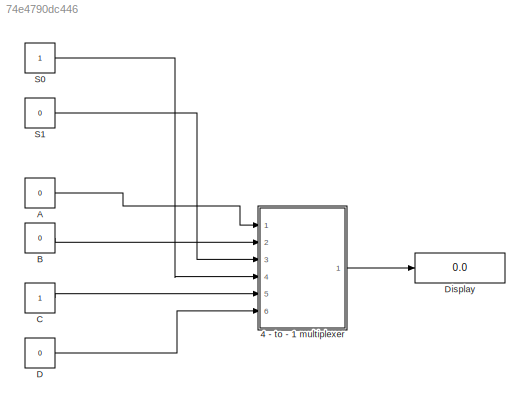
MODEL slx_74e4790dc446
KIND model
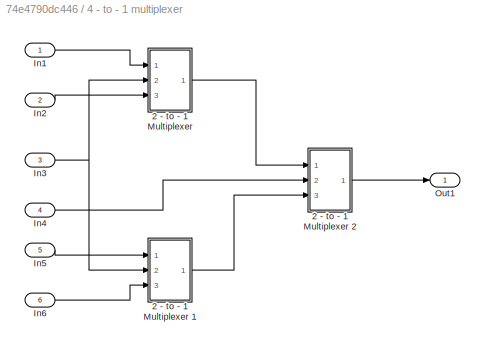
BLOCK [SubSystem] 4 - to  - 1 multiplexer
  Ports = [6, 1]
  RequestExecContextInheritance = off
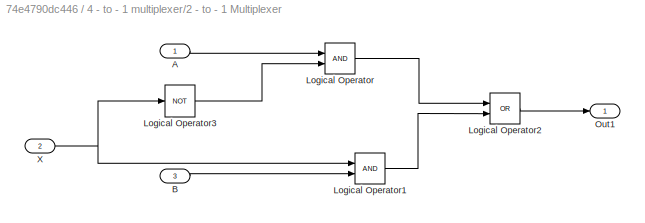
BLOCK [SubSystem] 4 - to  - 1 multiplexer/2 - to -  1 Multiplexer 
  Ports = [3, 1]
  RequestExecContextInheritance = off
BLOCK [Inport] 4 - to  - 1 multiplexer/2 - to -  1 Multiplexer /A
  IconDisplay = Port number
BLOCK [Inport] 4 - to  - 1 multiplexer/2 - to -  1 Multiplexer /B
  IconDisplay = Port number
  Port = 3
BLOCK [Logic] 4 - to  - 1 multiplexer/2 - to -  1 Multiplexer /Logical Operator
  AllPortsSameDT = off
  OutDataTypeStr = boolean
  Ports = [2, 1]
BLOCK [Logic] 4 - to  - 1 multiplexer/2 - to -  1 Multiplexer /Logical Operator1
  AllPortsSameDT = off
  OutDataTypeStr = boolean
  Ports = [2, 1]
BLOCK [Logic] 4 - to  - 1 multiplexer/2 - to -  1 Multiplexer /Logical Operator2
  AllPortsSameDT = off
  Operator = OR
  OutDataTypeStr = boolean
  Ports = [2, 1]
BLOCK [Logic] 4 - to  - 1 multiplexer/2 - to -  1 Multiplexer /Logical Operator3
  AllPortsSameDT = off
  Operator = NOT
  OutDataTypeStr = boolean
  Ports = [1, 1]
BLOCK [Outport] 4 - to  - 1 multiplexer/2 - to -  1 Multiplexer /Out1
  IconDisplay = Port number
BLOCK [Inport] 4 - to  - 1 multiplexer/2 - to -  1 Multiplexer /X
  IconDisplay = Port number
  Port = 2
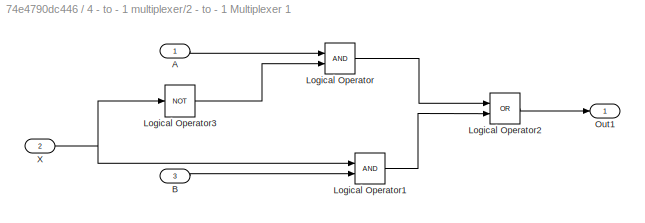
BLOCK [SubSystem] 4 - to  - 1 multiplexer/2 - to -  1 Multiplexer 1
  Ports = [3, 1]
  RequestExecContextInheritance = off
BLOCK [Inport] 4 - to  - 1 multiplexer/2 - to -  1 Multiplexer 1/A
  IconDisplay = Port number
BLOCK [Inport] 4 - to  - 1 multiplexer/2 - to -  1 Multiplexer 1/B
  IconDisplay = Port number
  Port = 3
BLOCK [Logic] 4 - to  - 1 multiplexer/2 - to -  1 Multiplexer 1/Logical Operator
  AllPortsSameDT = off
  OutDataTypeStr = boolean
  Ports = [2, 1]
BLOCK [Logic] 4 - to  - 1 multiplexer/2 - to -  1 Multiplexer 1/Logical Operator1
  AllPortsSameDT = off
  OutDataTypeStr = boolean
  Ports = [2, 1]
BLOCK [Logic] 4 - to  - 1 multiplexer/2 - to -  1 Multiplexer 1/Logical Operator2
  AllPortsSameDT = off
  Operator = OR
  OutDataTypeStr = boolean
  Ports = [2, 1]
BLOCK [Logic] 4 - to  - 1 multiplexer/2 - to -  1 Multiplexer 1/Logical Operator3
  AllPortsSameDT = off
  Operator = NOT
  OutDataTypeStr = boolean
  Ports = [1, 1]
BLOCK [Outport] 4 - to  - 1 multiplexer/2 - to -  1 Multiplexer 1/Out1
  IconDisplay = Port number
BLOCK [Inport] 4 - to  - 1 multiplexer/2 - to -  1 Multiplexer 1/X
  IconDisplay = Port number
  Port = 2
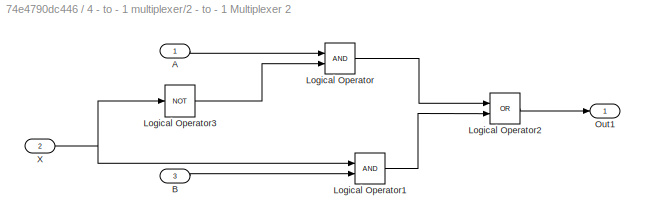
BLOCK [SubSystem] 4 - to  - 1 multiplexer/2 - to -  1 Multiplexer 2
  Ports = [3, 1]
  RequestExecContextInheritance = off
BLOCK [Inport] 4 - to  - 1 multiplexer/2 - to -  1 Multiplexer 2/A
  IconDisplay = Port number
BLOCK [Inport] 4 - to  - 1 multiplexer/2 - to -  1 Multiplexer 2/B
  IconDisplay = Port number
  Port = 3
BLOCK [Logic] 4 - to  - 1 multiplexer/2 - to -  1 Multiplexer 2/Logical Operator
  AllPortsSameDT = off
  OutDataTypeStr = boolean
  Ports = [2, 1]
BLOCK [Logic] 4 - to  - 1 multiplexer/2 - to -  1 Multiplexer 2/Logical Operator1
  AllPortsSameDT = off
  OutDataTypeStr = boolean
  Ports = [2, 1]
BLOCK [Logic] 4 - to  - 1 multiplexer/2 - to -  1 Multiplexer 2/Logical Operator2
  AllPortsSameDT = off
  Operator = OR
  OutDataTypeStr = boolean
  Ports = [2, 1]
BLOCK [Logic] 4 - to  - 1 multiplexer/2 - to -  1 Multiplexer 2/Logical Operator3
  AllPortsSameDT = off
  Operator = NOT
  OutDataTypeStr = boolean
  Ports = [1, 1]
BLOCK [Outport] 4 - to  - 1 multiplexer/2 - to -  1 Multiplexer 2/Out1
  IconDisplay = Port number
BLOCK [Inport] 4 - to  - 1 multiplexer/2 - to -  1 Multiplexer 2/X
  IconDisplay = Port number
  Port = 2
BLOCK [Inport] 4 - to  - 1 multiplexer/In1
  IconDisplay = Port number
BLOCK [Inport] 4 - to  - 1 multiplexer/In2
  IconDisplay = Port number
  Port = 2
BLOCK [Inport] 4 - to  - 1 multiplexer/In3
  IconDisplay = Port number
  Port = 3
BLOCK [Inport] 4 - to  - 1 multiplexer/In4
  IconDisplay = Port number
  Port = 4
BLOCK [Inport] 4 - to  - 1 multiplexer/In5
  IconDisplay = Port number
  Port = 5
BLOCK [Inport] 4 - to  - 1 multiplexer/In6
  IconDisplay = Port number
  Port = 6
BLOCK [Outport] 4 - to  - 1 multiplexer/Out1
  IconDisplay = Port number
BLOCK [Constant] A
  Value = 0
BLOCK [Constant] B
  Value = 0
BLOCK [Constant] C
BLOCK [Constant] D
  Value = 0
BLOCK [Display] Display
  Decimation = 1
  Ports = [1]
BLOCK [Constant] S0
BLOCK [Constant] S1
  Value = 0
LINE 4 - to  - 1 multiplexer/2 - to -  1 Multiplexer /A:1 -> 4 - to  - 1 multiplexer/2 - to -  1 Multiplexer /Logical Operator:1
LINE 4 - to  - 1 multiplexer/2 - to -  1 Multiplexer /B:1 -> 4 - to  - 1 multiplexer/2 - to -  1 Multiplexer /Logical Operator1:2
LINE 4 - to  - 1 multiplexer/2 - to -  1 Multiplexer /Logical Operator1:1 -> 4 - to  - 1 multiplexer/2 - to -  1 Multiplexer /Logical Operator2:2
LINE 4 - to  - 1 multiplexer/2 - to -  1 Multiplexer /Logical Operator2:1 -> 4 - to  - 1 multiplexer/2 - to -  1 Multiplexer /Out1:1
LINE 4 - to  - 1 multiplexer/2 - to -  1 Multiplexer /Logical Operator3:1 -> 4 - to  - 1 multiplexer/2 - to -  1 Multiplexer /Logical Operator:2
LINE 4 - to  - 1 multiplexer/2 - to -  1 Multiplexer /Logical Operator:1 -> 4 - to  - 1 multiplexer/2 - to -  1 Multiplexer /Logical Operator2:1
NET 4 - to  - 1 multiplexer/2 - to -  1 Multiplexer /X:1 -> 4 - to  - 1 multiplexer/2 - to -  1 Multiplexer /Logical Operator1:1, 4 - to  - 1 multiplexer/2 - to -  1 Multiplexer /Logical Operator3:1
LINE 4 - to  - 1 multiplexer/2 - to -  1 Multiplexer 1/A:1 -> 4 - to  - 1 multiplexer/2 - to -  1 Multiplexer 1/Logical Operator:1
LINE 4 - to  - 1 multiplexer/2 - to -  1 Multiplexer 1/B:1 -> 4 - to  - 1 multiplexer/2 - to -  1 Multiplexer 1/Logical Operator1:2
LINE 4 - to  - 1 multiplexer/2 - to -  1 Multiplexer 1/Logical Operator1:1 -> 4 - to  - 1 multiplexer/2 - to -  1 Multiplexer 1/Logical Operator2:2
LINE 4 - to  - 1 multiplexer/2 - to -  1 Multiplexer 1/Logical Operator2:1 -> 4 - to  - 1 multiplexer/2 - to -  1 Multiplexer 1/Out1:1
LINE 4 - to  - 1 multiplexer/2 - to -  1 Multiplexer 1/Logical Operator3:1 -> 4 - to  - 1 multiplexer/2 - to -  1 Multiplexer 1/Logical Operator:2
LINE 4 - to  - 1 multiplexer/2 - to -  1 Multiplexer 1/Logical Operator:1 -> 4 - to  - 1 multiplexer/2 - to -  1 Multiplexer 1/Logical Operator2:1
NET 4 - to  - 1 multiplexer/2 - to -  1 Multiplexer 1/X:1 -> 4 - to  - 1 multiplexer/2 - to -  1 Multiplexer 1/Logical Operator1:1, 4 - to  - 1 multiplexer/2 - to -  1 Multiplexer 1/Logical Operator3:1
LINE 4 - to  - 1 multiplexer/2 - to -  1 Multiplexer 1:1 -> 4 - to  - 1 multiplexer/2 - to -  1 Multiplexer 2:3
LINE 4 - to  - 1 multiplexer/2 - to -  1 Multiplexer 2/A:1 -> 4 - to  - 1 multiplexer/2 - to -  1 Multiplexer 2/Logical Operator:1
LINE 4 - to  - 1 multiplexer/2 - to -  1 Multiplexer 2/B:1 -> 4 - to  - 1 multiplexer/2 - to -  1 Multiplexer 2/Logical Operator1:2
LINE 4 - to  - 1 multiplexer/2 - to -  1 Multiplexer 2/Logical Operator1:1 -> 4 - to  - 1 multiplexer/2 - to -  1 Multiplexer 2/Logical Operator2:2
LINE 4 - to  - 1 multiplexer/2 - to -  1 Multiplexer 2/Logical Operator2:1 -> 4 - to  - 1 multiplexer/2 - to -  1 Multiplexer 2/Out1:1
LINE 4 - to  - 1 multiplexer/2 - to -  1 Multiplexer 2/Logical Operator3:1 -> 4 - to  - 1 multiplexer/2 - to -  1 Multiplexer 2/Logical Operator:2
LINE 4 - to  - 1 multiplexer/2 - to -  1 Multiplexer 2/Logical Operator:1 -> 4 - to  - 1 multiplexer/2 - to -  1 Multiplexer 2/Logical Operator2:1
NET 4 - to  - 1 multiplexer/2 - to -  1 Multiplexer 2/X:1 -> 4 - to  - 1 multiplexer/2 - to -  1 Multiplexer 2/Logical Operator1:1, 4 - to  - 1 multiplexer/2 - to -  1 Multiplexer 2/Logical Operator3:1
LINE 4 - to  - 1 multiplexer/2 - to -  1 Multiplexer 2:1 -> 4 - to  - 1 multiplexer/Out1:1
LINE 4 - to  - 1 multiplexer/2 - to -  1 Multiplexer :1 -> 4 - to  - 1 multiplexer/2 - to -  1 Multiplexer 2:1
LINE 4 - to  - 1 multiplexer/In1:1 -> 4 - to  - 1 multiplexer/2 - to -  1 Multiplexer :1
LINE 4 - to  - 1 multiplexer/In2:1 -> 4 - to  - 1 multiplexer/2 - to -  1 Multiplexer :3
NET 4 - to  - 1 multiplexer/In3:1 -> 4 - to  - 1 multiplexer/2 - to -  1 Multiplexer 1:2, 4 - to  - 1 multiplexer/2 - to -  1 Multiplexer :2
LINE 4 - to  - 1 multiplexer/In4:1 -> 4 - to  - 1 multiplexer/2 - to -  1 Multiplexer 2:2
LINE 4 - to  - 1 multiplexer/In5:1 -> 4 - to  - 1 multiplexer/2 - to -  1 Multiplexer 1:1
LINE 4 - to  - 1 multiplexer/In6:1 -> 4 - to  - 1 multiplexer/2 - to -  1 Multiplexer 1:3
LINE 4 - to  - 1 multiplexer:1 -> Display:1
LINE A:1 -> 4 - to  - 1 multiplexer:1
LINE B:1 -> 4 - to  - 1 multiplexer:2
LINE C:1 -> 4 - to  - 1 multiplexer:5
LINE D:1 -> 4 - to  - 1 multiplexer:6
LINE S0:1 -> 4 - to  - 1 multiplexer:4
LINE S1:1 -> 4 - to  - 1 multiplexer:3
note: NET lines group one-source signal fan-out (src -> all destinations, sorted); 1:1 wires keep LINE
